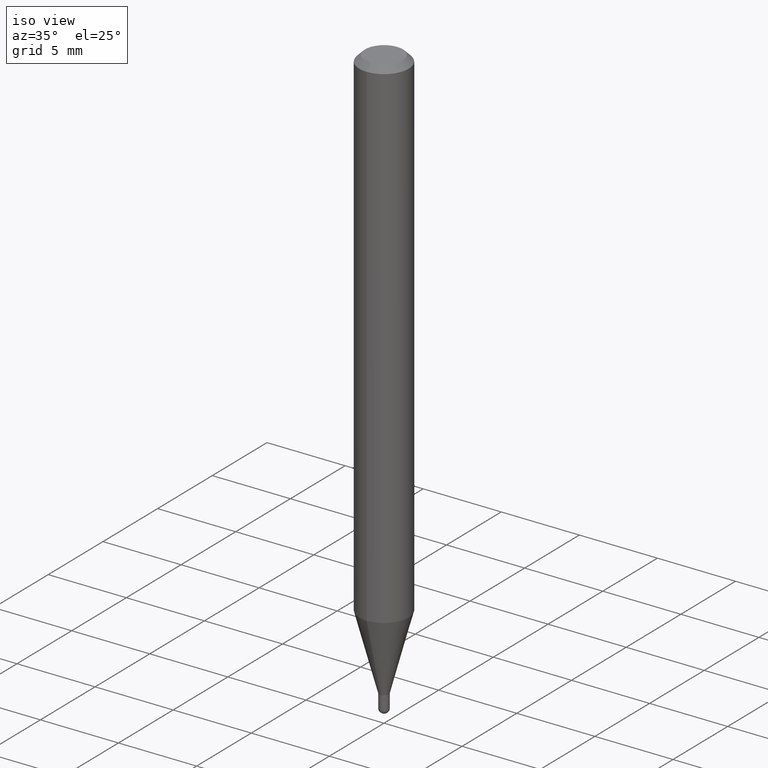
[diagram: clean part render]
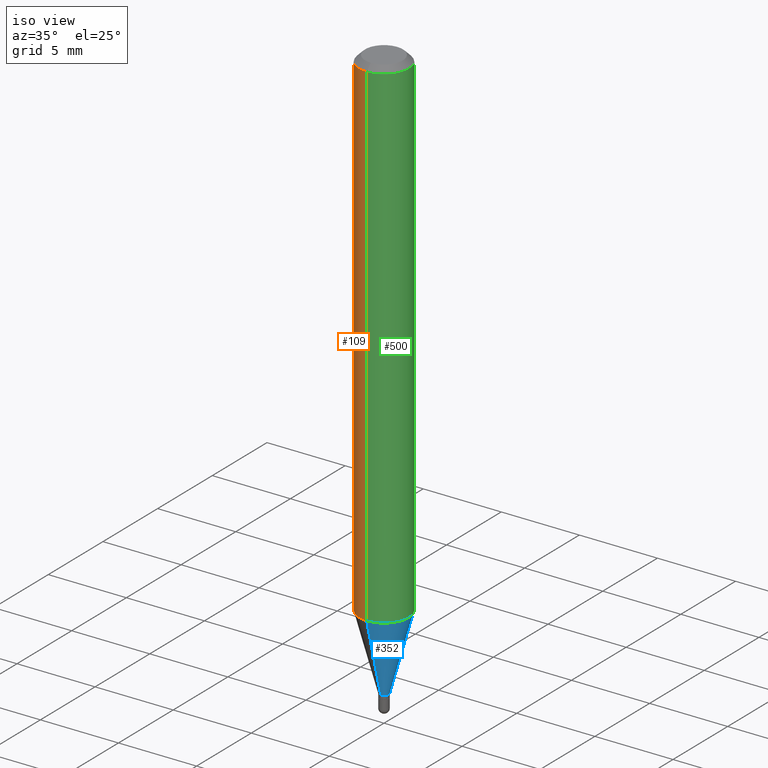
[diagram: same view with three faces highlighted in distinct colors, each labeled with its STEP entity id]
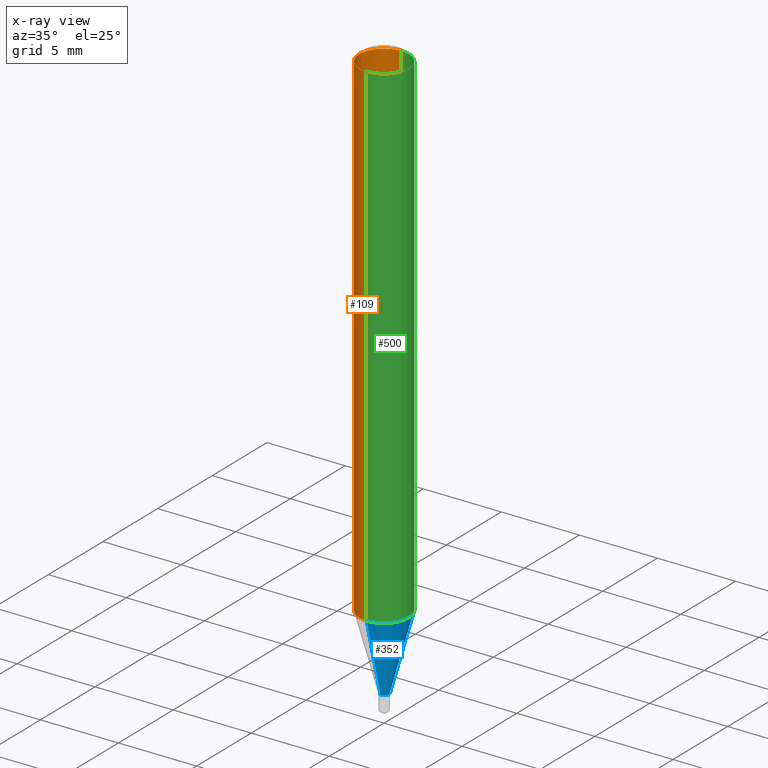
[diagram: x-ray of the same camera — body ghosted, the three highlighted faces saturated]
A machine part, iso view with three faces highlighted in distinct colors.
The next image is the same camera in x-ray (body ghosted, the three faces saturated) — at least one of them is partly hidden behind the body in this view.
Their STEP definitions:

[orange] entity #109 — the highlighted cylindrical surface (edge-blend (fillet) strip) has radius 1.5875 mm, axis along (-0, 0, 1).
#4 = CYLINDRICAL_SURFACE ( 'NONE', #497, 0.06250000000000000000 ) ;
#6 = DIRECTION ( 'NONE',  ( -6.982962677686265922E-15, -1.000000000000000000, 4.370956789862821150E-15 ) ) ;
#35 = DIRECTION ( 'NONE',  ( -2.445462910778639321E-29, 3.491489781400795201E-15, 1.000000000000000000 ) ) ;
#49 = DIRECTION ( 'NONE',  ( -2.445462910778639602E-29, 3.491489781400795201E-15, 1.000000000000000000 ) ) ;
#60 = EDGE_CURVE ( 'NONE', #489, #355, #278, .T. ) ;
#85 = VERTEX_POINT ( 'NONE', #480 ) ;
#88 = ORIENTED_EDGE ( 'NONE', *, *, #60, .T. ) ;
#91 = ORIENTED_EDGE ( 'NONE', *, *, #407, .F. ) ;
#92 = CIRCLE ( 'NONE', #310, 0.06250000000000000000 ) ;
#96 = CARTESIAN_POINT ( 'NONE',  ( -4.364351673553606573E-16, -0.06250000000000442701, -1.265531434217771700 ) ) ;
#109 = ADVANCED_FACE ( 'NONE', ( #366 ), #4, .T. ) ;
#114 = ORIENTED_EDGE ( 'NONE', *, *, #376, .F. ) ;
#136 = CARTESIAN_POINT ( 'NONE',  ( 4.440892098500932831E-16, 0.06249999999999555911, -1.265531434217772144 ) ) ;
#168 = CIRCLE ( 'NONE', #357, 0.06250000000000000000 ) ;
#171 = DIRECTION ( 'NONE',  ( -6.982962677686265922E-15, -1.000000000000000000, 3.491489781400795201E-15 ) ) ;
#212 = DIRECTION ( 'NONE',  ( -2.445462910778639321E-29, 3.491489781400795201E-15, 1.000000000000000000 ) ) ;
#239 = CARTESIAN_POINT ( 'NONE',  ( -4.364351673553912750E-16, -0.06250000000000005551, -0.01499999999999954321 ) ) ;
#268 = DIRECTION ( 'NONE',  ( -2.445462910778639321E-29, 3.491489781400795201E-15, 1.000000000000000000 ) ) ;
#278 = LINE ( 'NONE', #358, #337 ) ;
#289 = CARTESIAN_POINT ( 'NONE',  ( 4.440892098500625669E-16, 0.06250000000000000000, -2.182181113375497001E-16 ) ) ;
#295 = DIRECTION ( 'NONE',  ( -2.445462910778639602E-29, 3.491489781400795201E-15, 1.000000000000000000 ) ) ;
#310 = AXIS2_PLACEMENT_3D ( 'NONE', #314, #35, #6 ) ;
#314 = CARTESIAN_POINT ( 'NONE',  ( 3.094810184804058923E-29, -4.418590070612843817E-15, -1.265531434217771922 ) ) ;
#317 = EDGE_CURVE ( 'NONE', #485, #489, #92, .T. ) ;
#321 = EDGE_LOOP ( 'NONE', ( #91, #419, #88, #114 ) ) ;
#336 = LINE ( 'NONE', #289, #491 ) ;
#337 = VECTOR ( 'NONE', #49, 39.37007874015748143 ) ;
#355 = VERTEX_POINT ( 'NONE', #239 ) ;
#357 = AXIS2_PLACEMENT_3D ( 'NONE', #406, #212, #484 ) ;
#358 = CARTESIAN_POINT ( 'NONE',  ( -4.364351673553916201E-16, -0.06250000000000000000, 2.182181113375497001E-16 ) ) ;
#366 = FACE_OUTER_BOUND ( 'NONE', #321, .T. ) ;
#376 = EDGE_CURVE ( 'NONE', #85, #355, #168, .T. ) ;
#406 = CARTESIAN_POINT ( 'NONE',  ( 3.668194366167900460E-31, -5.237234672101109478E-17, -0.01499999999999976179 ) ) ;
#407 = EDGE_CURVE ( 'NONE', #485, #85, #336, .T. ) ;
#419 = ORIENTED_EDGE ( 'NONE', *, *, #317, .T. ) ;
#430 = CARTESIAN_POINT ( 'NONE',  ( 0.000000000000000000, 0.000000000000000000, 0.000000000000000000 ) ) ;
#480 = CARTESIAN_POINT ( 'NONE',  ( 4.440892098500936776E-16, 0.06249999999999993755, -0.01499999999999997863 ) ) ;
#484 = DIRECTION ( 'NONE',  ( -6.982962677686265922E-15, -1.000000000000000000, 3.483106191921935554E-15 ) ) ;
#485 = VERTEX_POINT ( 'NONE', #136 ) ;
#489 = VERTEX_POINT ( 'NONE', #96 ) ;
#491 = VECTOR ( 'NONE', #295, 39.37007874015748143 ) ;
#497 = AXIS2_PLACEMENT_3D ( 'NONE', #430, #268, #171 ) ;

[blue] entity #352 — the highlighted conical surface has half-angle 15 deg.
#9 = DIRECTION ( 'NONE',  ( -6.982962677686266711E-15, -1.000000000000000000, 0.000000000000000000 ) ) ;
#16 = CARTESIAN_POINT ( 'NONE',  ( -8.379555213219910077E-17, -0.01200000000000499972, -1.453999999999999737 ) ) ;
#33 = ORIENTED_EDGE ( 'NONE', *, *, #471, .F. ) ;
#47 = VECTOR ( 'NONE', #294, 39.37007874015748143 ) ;
#82 = CARTESIAN_POINT ( 'NONE',  ( 3.555703072272141171E-29, -5.076626142156755697E-15, -1.453999999999999737 ) ) ;
#89 = DIRECTION ( 'NONE',  ( -1.807323732225329745E-15, -0.2588190451025181305, 0.9659258262890689783 ) ) ;
#96 = CARTESIAN_POINT ( 'NONE',  ( -4.364351673553606573E-16, -0.06250000000000442701, -1.265531434217771700 ) ) ;
#98 = CARTESIAN_POINT ( 'NONE',  ( 8.526512829124701746E-17, 0.01199999999999484465, -1.453999999999999737 ) ) ;
#100 = CONICAL_SURFACE ( 'NONE', #386, 0.01199999999999992219, 0.2617993877991502405 ) ;
#105 = CIRCLE ( 'NONE', #373, 0.01199999999999992219 ) ;
#111 = EDGE_CURVE ( 'NONE', #264, #489, #327, .T. ) ;
#136 = CARTESIAN_POINT ( 'NONE',  ( 4.440892098500932831E-16, 0.06249999999999555911, -1.265531434217772144 ) ) ;
#161 = FACE_OUTER_BOUND ( 'NONE', #189, .T. ) ;
#177 = AXIS2_PLACEMENT_3D ( 'NONE', #451, #408, #496 ) ;
#178 = EDGE_CURVE ( 'NONE', #349, #485, #494, .T. ) ;
#189 = EDGE_LOOP ( 'NONE', ( #403, #423, #33, #315 ) ) ;
#233 = CARTESIAN_POINT ( 'NONE',  ( 3.555703072272141171E-29, -5.076626142156755697E-15, -1.453999999999999737 ) ) ;
#236 = DIRECTION ( 'NONE',  ( -2.445462910778639321E-29, 3.491489781400795201E-15, 1.000000000000000000 ) ) ;
#264 = VERTEX_POINT ( 'NONE', #16 ) ;
#266 = CARTESIAN_POINT ( 'NONE',  ( 2.646771690706703907E-16, 0.01199999999999484465, -1.453999999999999737 ) ) ;
#294 = DIRECTION ( 'NONE',  ( 1.839019923739599921E-15, 0.2588190451025249028, 0.9659258262890670910 ) ) ;
#315 = ORIENTED_EDGE ( 'NONE', *, *, #111, .F. ) ;
#327 = LINE ( 'NONE', #447, #345 ) ;
#328 = EDGE_CURVE ( 'NONE', #264, #349, #105, .T. ) ;
#345 = VECTOR ( 'NONE', #89, 39.37007874015748143 ) ;
#349 = VERTEX_POINT ( 'NONE', #266 ) ;
#352 = ADVANCED_FACE ( 'NONE', ( #161 ), #100, .T. ) ;
#362 = DIRECTION ( 'NONE',  ( -2.445462910778639321E-29, 3.491489781400795201E-15, 1.000000000000000000 ) ) ;
#373 = AXIS2_PLACEMENT_3D ( 'NONE', #233, #362, #433 ) ;
#374 = CIRCLE ( 'NONE', #177, 0.06250000000000000000 ) ;
#386 = AXIS2_PLACEMENT_3D ( 'NONE', #82, #236, #9 ) ;
#403 = ORIENTED_EDGE ( 'NONE', *, *, #328, .T. ) ;
#408 = DIRECTION ( 'NONE',  ( -2.445462910778639321E-29, 3.491489781400795201E-15, 1.000000000000000000 ) ) ;
#423 = ORIENTED_EDGE ( 'NONE', *, *, #178, .T. ) ;
#433 = DIRECTION ( 'NONE',  ( -6.982962677686266711E-15, -1.000000000000000000, 0.000000000000000000 ) ) ;
#447 = CARTESIAN_POINT ( 'NONE',  ( -8.379555213219910077E-17, -0.01200000000000499972, -1.453999999999999737 ) ) ;
#451 = CARTESIAN_POINT ( 'NONE',  ( 3.094810184804058923E-29, -4.418590070612843817E-15, -1.265531434217771922 ) ) ;
#471 = EDGE_CURVE ( 'NONE', #489, #485, #374, .T. ) ;
#485 = VERTEX_POINT ( 'NONE', #136 ) ;
#489 = VERTEX_POINT ( 'NONE', #96 ) ;
#494 = LINE ( 'NONE', #98, #47 ) ;
#496 = DIRECTION ( 'NONE',  ( -6.982962677686265922E-15, -1.000000000000000000, 4.370956789862821150E-15 ) ) ;

[green] entity #500 — the highlighted cylindrical surface (edge-blend (fillet) strip) has radius 1.5875 mm, axis along (-0, 0, 1).
#30 = ORIENTED_EDGE ( 'NONE', *, *, #407, .T. ) ;
#48 = CIRCLE ( 'NONE', #145, 0.06250000000000000000 ) ;
#49 = DIRECTION ( 'NONE',  ( -2.445462910778639602E-29, 3.491489781400795201E-15, 1.000000000000000000 ) ) ;
#51 = CARTESIAN_POINT ( 'NONE',  ( 3.668194366167900460E-31, -5.237234672101109478E-17, -0.01499999999999976179 ) ) ;
#56 = DIRECTION ( 'NONE',  ( -2.445462910778639321E-29, 3.491489781400795201E-15, 1.000000000000000000 ) ) ;
#58 = DIRECTION ( 'NONE',  ( -6.982962677686265922E-15, -1.000000000000000000, 3.483106191921935554E-15 ) ) ;
#60 = EDGE_CURVE ( 'NONE', #489, #355, #278, .T. ) ;
#85 = VERTEX_POINT ( 'NONE', #480 ) ;
#96 = CARTESIAN_POINT ( 'NONE',  ( -4.364351673553606573E-16, -0.06250000000000442701, -1.265531434217771700 ) ) ;
#136 = CARTESIAN_POINT ( 'NONE',  ( 4.440892098500932831E-16, 0.06249999999999555911, -1.265531434217772144 ) ) ;
#145 = AXIS2_PLACEMENT_3D ( 'NONE', #51, #455, #58 ) ;
#177 = AXIS2_PLACEMENT_3D ( 'NONE', #451, #408, #496 ) ;
#217 = DIRECTION ( 'NONE',  ( -6.982962677686265922E-15, -1.000000000000000000, 3.491489781400795201E-15 ) ) ;
#234 = ORIENTED_EDGE ( 'NONE', *, *, #471, .T. ) ;
#239 = CARTESIAN_POINT ( 'NONE',  ( -4.364351673553912750E-16, -0.06250000000000005551, -0.01499999999999954321 ) ) ;
#252 = FACE_OUTER_BOUND ( 'NONE', #331, .T. ) ;
#274 = AXIS2_PLACEMENT_3D ( 'NONE', #414, #56, #217 ) ;
#278 = LINE ( 'NONE', #358, #337 ) ;
#289 = CARTESIAN_POINT ( 'NONE',  ( 4.440892098500625669E-16, 0.06250000000000000000, -2.182181113375497001E-16 ) ) ;
#295 = DIRECTION ( 'NONE',  ( -2.445462910778639602E-29, 3.491489781400795201E-15, 1.000000000000000000 ) ) ;
#331 = EDGE_LOOP ( 'NONE', ( #234, #30, #508, #398 ) ) ;
#336 = LINE ( 'NONE', #289, #491 ) ;
#337 = VECTOR ( 'NONE', #49, 39.37007874015748143 ) ;
#355 = VERTEX_POINT ( 'NONE', #239 ) ;
#358 = CARTESIAN_POINT ( 'NONE',  ( -4.364351673553916201E-16, -0.06250000000000000000, 2.182181113375497001E-16 ) ) ;
#374 = CIRCLE ( 'NONE', #177, 0.06250000000000000000 ) ;
#398 = ORIENTED_EDGE ( 'NONE', *, *, #60, .F. ) ;
#407 = EDGE_CURVE ( 'NONE', #485, #85, #336, .T. ) ;
#408 = DIRECTION ( 'NONE',  ( -2.445462910778639321E-29, 3.491489781400795201E-15, 1.000000000000000000 ) ) ;
#414 = CARTESIAN_POINT ( 'NONE',  ( 0.000000000000000000, 0.000000000000000000, 0.000000000000000000 ) ) ;
#451 = CARTESIAN_POINT ( 'NONE',  ( 3.094810184804058923E-29, -4.418590070612843817E-15, -1.265531434217771922 ) ) ;
#455 = DIRECTION ( 'NONE',  ( -2.445462910778639321E-29, 3.491489781400795201E-15, 1.000000000000000000 ) ) ;
#471 = EDGE_CURVE ( 'NONE', #489, #485, #374, .T. ) ;
#480 = CARTESIAN_POINT ( 'NONE',  ( 4.440892098500936776E-16, 0.06249999999999993755, -0.01499999999999997863 ) ) ;
#483 = EDGE_CURVE ( 'NONE', #355, #85, #48, .T. ) ;
#485 = VERTEX_POINT ( 'NONE', #136 ) ;
#489 = VERTEX_POINT ( 'NONE', #96 ) ;
#491 = VECTOR ( 'NONE', #295, 39.37007874015748143 ) ;
#495 = CYLINDRICAL_SURFACE ( 'NONE', #274, 0.06250000000000000000 ) ;
#496 = DIRECTION ( 'NONE',  ( -6.982962677686265922E-15, -1.000000000000000000, 4.370956789862821150E-15 ) ) ;
#500 = ADVANCED_FACE ( 'NONE', ( #252 ), #495, .T. ) ;
#508 = ORIENTED_EDGE ( 'NONE', *, *, #483, .F. ) ;